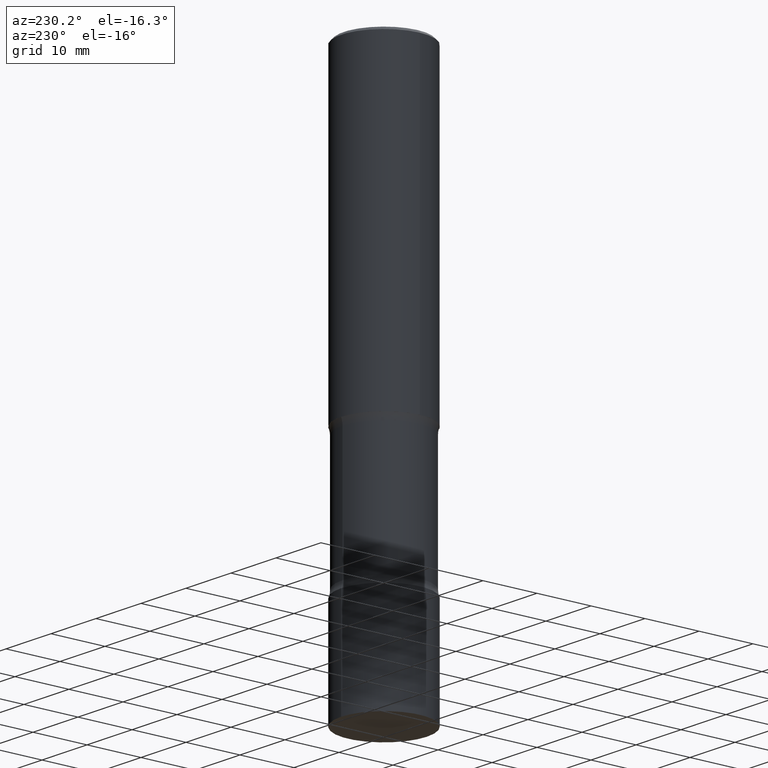
[diagram: clean part render]
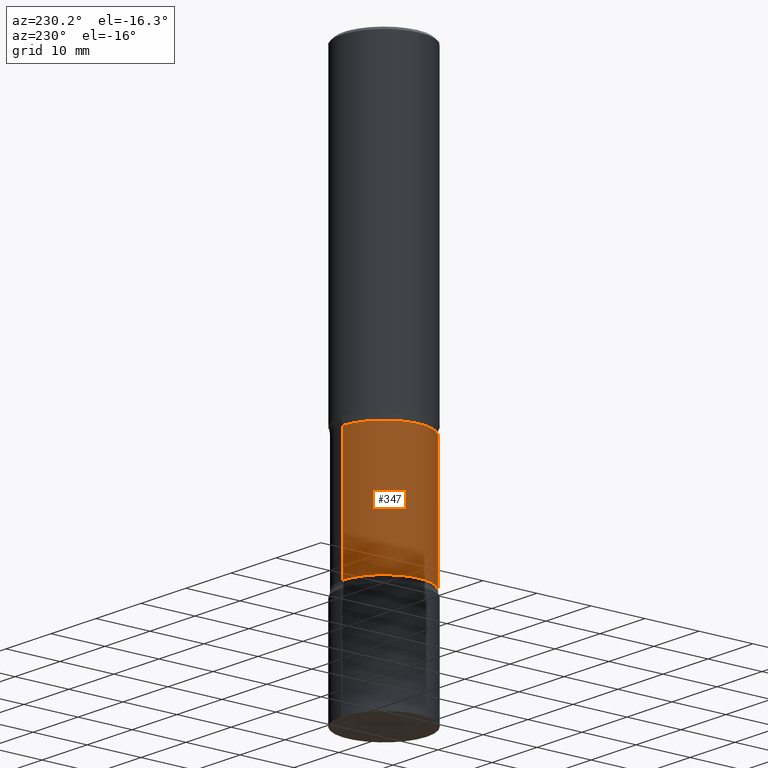
[diagram: same view with one face highlighted and labeled with its STEP entity id]
A machine part, auxiliary view. The second image highlights one B-rep face of the part: STEP entity #347.
In plain terms, the highlighted cylindrical surface (partial cylindrical patch) has radius 7.6835 mm, axis along (0, -0, -1).
Its self-contained STEP definition (entity closure, byte-faithful):
#4 = EDGE_CURVE ( 'NONE', #238, #206, #123, .T. ) ;
#30 = AXIS2_PLACEMENT_3D ( 'NONE', #229, #372, #348 ) ;
#38 = AXIS2_PLACEMENT_3D ( 'NONE', #255, #76, #498 ) ;
#42 = ORIENTED_EDGE ( 'NONE', *, *, #126, .F. ) ;
#53 = CARTESIAN_POINT ( 'NONE',  ( 2.112346210000151452E-15, 0.3024999999999919420, -2.298989794855665014 ) ) ;
#63 = DIRECTION ( 'NONE',  ( 2.194409616694609199E-29, -3.851012387595239372E-15, -1.000000000000000000 ) ) ;
#65 = VECTOR ( 'NONE', #260, 39.37007874015748143 ) ;
#76 = DIRECTION ( 'NONE',  ( 2.194409616694609199E-29, -3.851012387595239372E-15, -1.000000000000000000 ) ) ;
#86 = EDGE_CURVE ( 'NONE', #145, #238, #261, .T. ) ;
#106 = VERTEX_POINT ( 'NONE', #496 ) ;
#113 = VECTOR ( 'NONE', #63, 39.37007874015748143 ) ;
#116 = CYLINDRICAL_SURFACE ( 'NONE', #30, 0.3024999999999999356 ) ;
#123 = LINE ( 'NONE', #494, #65 ) ;
#126 = EDGE_CURVE ( 'NONE', #106, #206, #504, .T. ) ;
#145 = VERTEX_POINT ( 'NONE', #262 ) ;
#164 = CARTESIAN_POINT ( 'NONE',  ( 2.112346210000175513E-15, 0.3024999999999891109, -3.201010205144337206 ) ) ;
#168 = CARTESIAN_POINT ( 'NONE',  ( 7.838854716701635456E-29, -1.116068072920981579E-14, -3.201010205144336318 ) ) ;
#198 = ORIENTED_EDGE ( 'NONE', *, *, #486, .F. ) ;
#206 = VERTEX_POINT ( 'NONE', #164 ) ;
#229 = CARTESIAN_POINT ( 'NONE',  ( 9.592165606173758317E-29, -1.423760032676115406E-14, -4.000000000000000000 ) ) ;
#238 = VERTEX_POINT ( 'NONE', #53 ) ;
#255 = CARTESIAN_POINT ( 'NONE',  ( 5.859452453909356080E-29, -7.686988955324398625E-15, -2.298989794855664126 ) ) ;
#259 = LINE ( 'NONE', #444, #113 ) ;
#260 = DIRECTION ( 'NONE',  ( 2.194409616694609199E-29, -3.851012387595239372E-15, -1.000000000000000000 ) ) ;
#261 = CIRCLE ( 'NONE', #38, 0.3024999999999996581 ) ;
#262 = CARTESIAN_POINT ( 'NONE',  ( -2.109603134314685008E-15, -0.3025000000000073186, -2.298989794855662794 ) ) ;
#270 = DIRECTION ( 'NONE',  ( 6.982962677686265922E-15, 1.000000000000000000, -3.612360983357700469E-15 ) ) ;
#312 = AXIS2_PLACEMENT_3D ( 'NONE', #168, #422, #270 ) ;
#347 = ADVANCED_FACE ( 'NONE', ( #369 ), #116, .T. ) ;
#348 = DIRECTION ( 'NONE',  ( 6.982962677686265922E-15, 1.000000000000000000, -3.612360983357704414E-15 ) ) ;
#369 = FACE_OUTER_BOUND ( 'NONE', #433, .T. ) ;
#372 = DIRECTION ( 'NONE',  ( 2.194409616694609199E-29, -3.851012387595239372E-15, -1.000000000000000000 ) ) ;
#422 = DIRECTION ( 'NONE',  ( 2.194409616694609199E-29, -3.851012387595239372E-15, -1.000000000000000000 ) ) ;
#429 = ORIENTED_EDGE ( 'NONE', *, *, #4, .T. ) ;
#433 = EDGE_LOOP ( 'NONE', ( #198, #457, #429, #42 ) ) ;
#444 = CARTESIAN_POINT ( 'NONE',  ( -2.075300644325791646E-15, -0.3025000000000142020, -3.999999999999998668 ) ) ;
#457 = ORIENTED_EDGE ( 'NONE', *, *, #86, .T. ) ;
#486 = EDGE_CURVE ( 'NONE', #145, #106, #259, .T. ) ;
#494 = CARTESIAN_POINT ( 'NONE',  ( 2.112346210000190895E-15, 0.3024999999999857248, -4.000000000000000888 ) ) ;
#496 = CARTESIAN_POINT ( 'NONE',  ( -2.109603134314668836E-15, -0.3025000000000114819, -3.201010205144334986 ) ) ;
#498 = DIRECTION ( 'NONE',  ( 6.982962677686264344E-15, 1.000000000000000000, -3.612360983357707569E-15 ) ) ;
#504 = CIRCLE ( 'NONE', #312, 0.3025000000000002687 ) ;